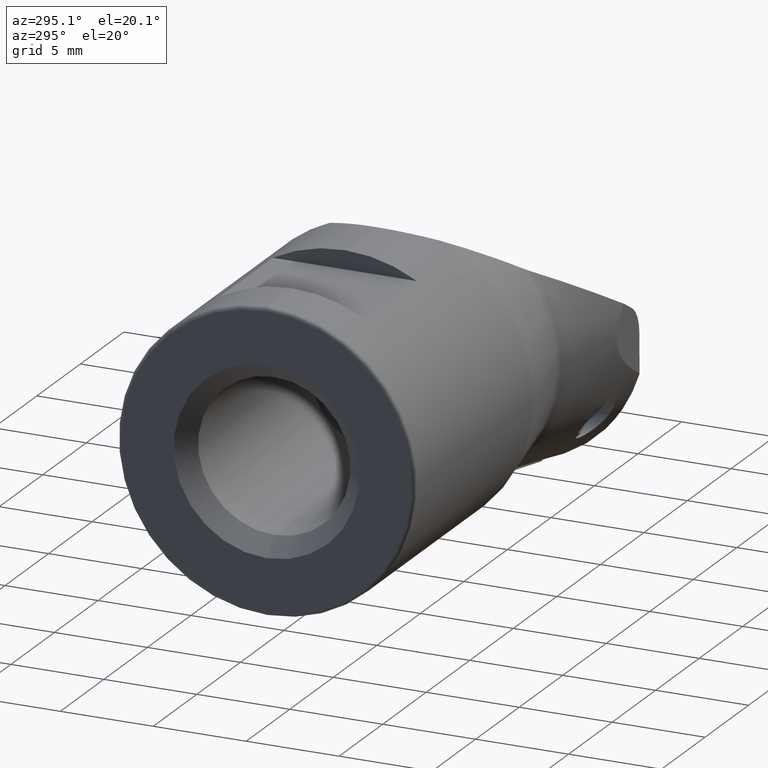
[diagram: clean part render]
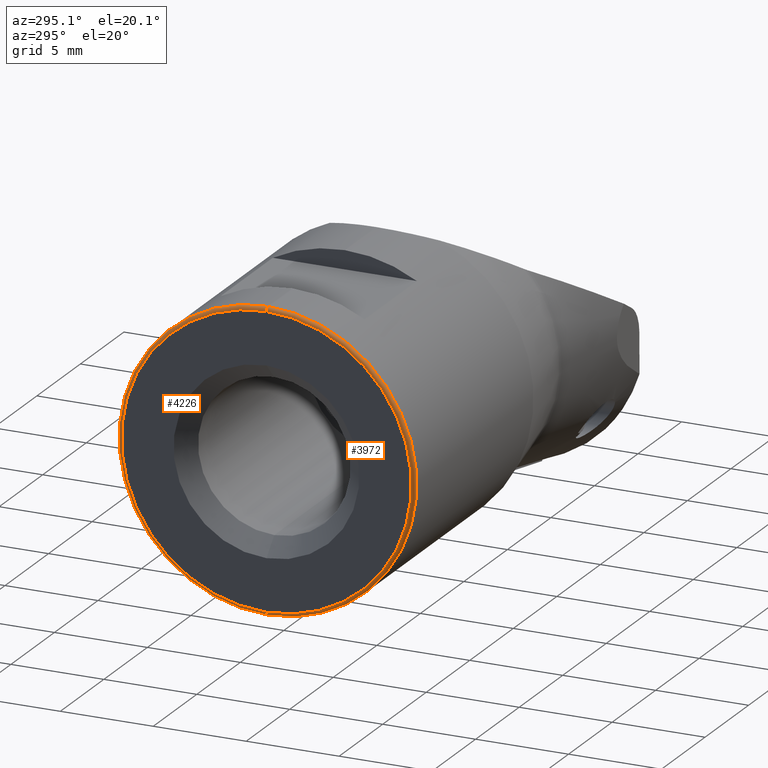
[diagram: same view with one multi-face feature highlighted, each face labeled with its STEP entity id]
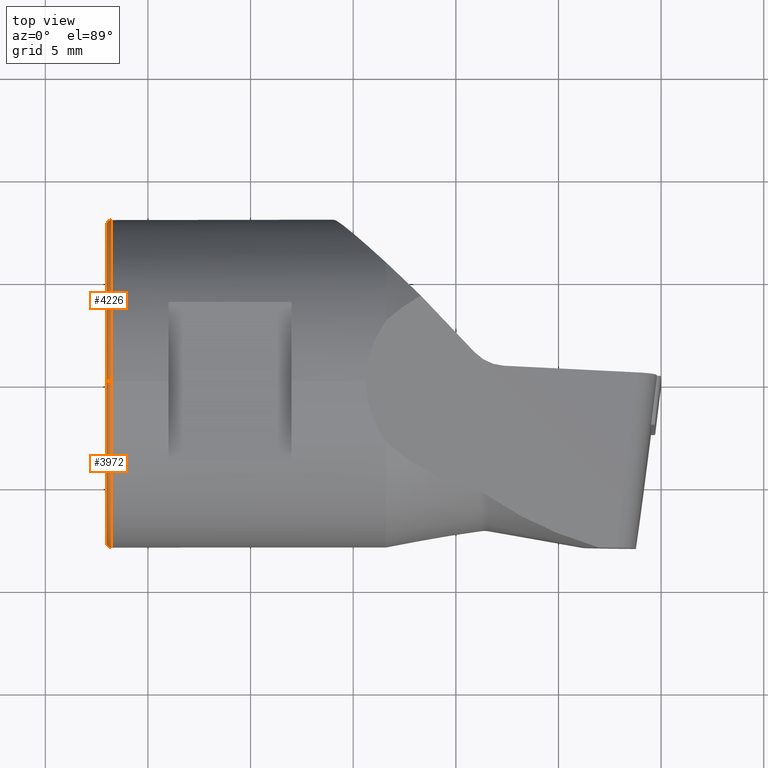
[diagram: same view with one multi-face feature highlighted, each face labeled with its STEP entity id]
A machine part, auxiliary view. The highlighted faces form ONE feature: a constant-radius fillet chain: 2 tangent blend faces with common blend radius 0.2 mm. The faces share edges in the B-rep.
A second angle (top view) of the same feature is appended — it is thin or edge-on in the first view.
Their STEP definitions:
[1] entity #3972 (Torus):
#35 = CARTESIAN_POINT ( 'NONE',  ( -26.80000000000000100, 0.0000000000000000000, 1.074999999999998600 ) ) ;
#44 = CARTESIAN_POINT ( 'NONE',  ( -26.80000000000000100, 9.797174393178825700E-016, 0.8749999999999990000 ) ) ;
#96 = CARTESIAN_POINT ( 'NONE',  ( -26.80000000000000100, 0.0000000000000000000, 8.875000000000000000 ) ) ;
#299 = AXIS2_PLACEMENT_3D ( 'NONE', #667, #1365, #4119 ) ;
#324 = CARTESIAN_POINT ( 'NONE',  ( -27.00000000000000000, 9.674709713264092100E-016, 16.67500000000000100 ) ) ;
#461 = TOROIDAL_SURFACE ( 'NONE', #1597, 7.800000000000000700, 0.2000000000000000100 ) ;
#475 = EDGE_CURVE ( 'NONE', #2062, #4185, #4625, .T. ) ;
#483 = DIRECTION ( 'NONE',  ( 0.0000000000000000000, 1.224646799147363800E-016, 1.000000000000000000 ) ) ;
#508 = AXIS2_PLACEMENT_3D ( 'NONE', #853, #3000, #483 ) ;
#525 = VERTEX_POINT ( 'NONE', #324 ) ;
#667 = CARTESIAN_POINT ( 'NONE',  ( -26.80000000000000100, 0.0000000000000000000, 8.875000000000000000 ) ) ;
#679 = ORIENTED_EDGE ( 'NONE', *, *, #4217, .F. ) ;
#685 = CIRCLE ( 'NONE', #299, 8.000000000000000000 ) ;
#767 = CARTESIAN_POINT ( 'NONE',  ( -27.00000000000000000, 0.0000000000000000000, 1.074999999999998600 ) ) ;
#780 = EDGE_CURVE ( 'NONE', #525, #1428, #1652, .T. ) ;
#853 = CARTESIAN_POINT ( 'NONE',  ( -26.80000000000000100, 9.552245033349356500E-016, 16.67499999999999700 ) ) ;
#1221 = AXIS2_PLACEMENT_3D ( 'NONE', #35, #2185, #1816 ) ;
#1223 = DIRECTION ( 'NONE',  ( 1.000000000000000000, 0.0000000000000000000, 0.0000000000000000000 ) ) ;
#1277 = FACE_OUTER_BOUND ( 'NONE', #2392, .T. ) ;
#1365 = DIRECTION ( 'NONE',  ( 1.000000000000000000, 0.0000000000000000000, 0.0000000000000000000 ) ) ;
#1428 = VERTEX_POINT ( 'NONE', #3156 ) ;
#1571 = ORIENTED_EDGE ( 'NONE', *, *, #3945, .F. ) ;
#1597 = AXIS2_PLACEMENT_3D ( 'NONE', #96, #1223, #2572 ) ;
#1652 = CIRCLE ( 'NONE', #508, 0.1999999999999987900 ) ;
#1816 = DIRECTION ( 'NONE',  ( 0.0000000000000000000, 0.0000000000000000000, -1.000000000000000000 ) ) ;
#1905 = DIRECTION ( 'NONE',  ( -1.000000000000000000, -0.0000000000000000000, -0.0000000000000000000 ) ) ;
#2062 = VERTEX_POINT ( 'NONE', #767 ) ;
#2185 = DIRECTION ( 'NONE',  ( 0.0000000000000000000, -1.000000000000000000, 0.0000000000000000000 ) ) ;
#2392 = EDGE_LOOP ( 'NONE', ( #2809, #679, #4627, #1571 ) ) ;
#2572 = DIRECTION ( 'NONE',  ( 0.0000000000000000000, 0.0000000000000000000, -1.000000000000000000 ) ) ;
#2809 = ORIENTED_EDGE ( 'NONE', *, *, #780, .F. ) ;
#3000 = DIRECTION ( 'NONE',  ( 0.0000000000000000000, 1.000000000000000000, -1.224646799147353200E-016 ) ) ;
#3010 = AXIS2_PLACEMENT_3D ( 'NONE', #4235, #1905, #3297 ) ;
#3156 = CARTESIAN_POINT ( 'NONE',  ( -26.80000000000000100, 0.0000000000000000000, 16.87500000000000000 ) ) ;
#3297 = DIRECTION ( 'NONE',  ( 0.0000000000000000000, 0.0000000000000000000, -1.000000000000000000 ) ) ;
#3824 = CIRCLE ( 'NONE', #3010, 7.800000000000000700 ) ;
#3945 = EDGE_CURVE ( 'NONE', #1428, #4185, #685, .T. ) ;
#3972 = ADVANCED_FACE ( 'NONE', ( #1277 ), #461, .T. ) ;
#4119 = DIRECTION ( 'NONE',  ( 0.0000000000000000000, 0.0000000000000000000, -1.000000000000000000 ) ) ;
#4185 = VERTEX_POINT ( 'NONE', #44 ) ;
#4217 = EDGE_CURVE ( 'NONE', #2062, #525, #3824, .T. ) ;
#4235 = CARTESIAN_POINT ( 'NONE',  ( -27.00000000000000000, 0.0000000000000000000, 8.875000000000000000 ) ) ;
#4625 = CIRCLE ( 'NONE', #1221, 0.1999999999999999800 ) ;
#4627 = ORIENTED_EDGE ( 'NONE', *, *, #475, .T. ) ;
[2] entity #4226 (Torus):
#35 = CARTESIAN_POINT ( 'NONE',  ( -26.80000000000000100, 0.0000000000000000000, 1.074999999999998600 ) ) ;
#41 = DIRECTION ( 'NONE',  ( 1.000000000000000000, 0.0000000000000000000, 0.0000000000000000000 ) ) ;
#44 = CARTESIAN_POINT ( 'NONE',  ( -26.80000000000000100, 9.797174393178825700E-016, 0.8749999999999990000 ) ) ;
#120 = EDGE_CURVE ( 'NONE', #4185, #1428, #652, .T. ) ;
#276 = ORIENTED_EDGE ( 'NONE', *, *, #1757, .F. ) ;
#294 = ORIENTED_EDGE ( 'NONE', *, *, #120, .F. ) ;
#324 = CARTESIAN_POINT ( 'NONE',  ( -27.00000000000000000, 9.674709713264092100E-016, 16.67500000000000100 ) ) ;
#396 = CARTESIAN_POINT ( 'NONE',  ( -26.80000000000000100, 0.0000000000000000000, 8.875000000000000000 ) ) ;
#447 = EDGE_LOOP ( 'NONE', ( #276, #2600, #294, #2755 ) ) ;
#475 = EDGE_CURVE ( 'NONE', #2062, #4185, #4625, .T. ) ;
#483 = DIRECTION ( 'NONE',  ( 0.0000000000000000000, 1.224646799147363800E-016, 1.000000000000000000 ) ) ;
#500 = FACE_OUTER_BOUND ( 'NONE', #447, .T. ) ;
#508 = AXIS2_PLACEMENT_3D ( 'NONE', #853, #3000, #483 ) ;
#525 = VERTEX_POINT ( 'NONE', #324 ) ;
#652 = CIRCLE ( 'NONE', #2601, 8.000000000000000000 ) ;
#767 = CARTESIAN_POINT ( 'NONE',  ( -27.00000000000000000, 0.0000000000000000000, 1.074999999999998600 ) ) ;
#780 = EDGE_CURVE ( 'NONE', #525, #1428, #1652, .T. ) ;
#853 = CARTESIAN_POINT ( 'NONE',  ( -26.80000000000000100, 9.552245033349356500E-016, 16.67499999999999700 ) ) ;
#1221 = AXIS2_PLACEMENT_3D ( 'NONE', #35, #2185, #1816 ) ;
#1410 = TOROIDAL_SURFACE ( 'NONE', #3920, 7.800000000000000700, 0.2000000000000000100 ) ;
#1428 = VERTEX_POINT ( 'NONE', #3156 ) ;
#1538 = AXIS2_PLACEMENT_3D ( 'NONE', #1750, #4485, #3042 ) ;
#1621 = CIRCLE ( 'NONE', #1538, 7.800000000000000700 ) ;
#1652 = CIRCLE ( 'NONE', #508, 0.1999999999999987900 ) ;
#1750 = CARTESIAN_POINT ( 'NONE',  ( -27.00000000000000000, 0.0000000000000000000, 8.875000000000000000 ) ) ;
#1757 = EDGE_CURVE ( 'NONE', #525, #2062, #1621, .T. ) ;
#1816 = DIRECTION ( 'NONE',  ( 0.0000000000000000000, 0.0000000000000000000, -1.000000000000000000 ) ) ;
#1836 = CARTESIAN_POINT ( 'NONE',  ( -26.80000000000000100, 0.0000000000000000000, 8.875000000000000000 ) ) ;
#2062 = VERTEX_POINT ( 'NONE', #767 ) ;
#2185 = DIRECTION ( 'NONE',  ( 0.0000000000000000000, -1.000000000000000000, 0.0000000000000000000 ) ) ;
#2192 = DIRECTION ( 'NONE',  ( 0.0000000000000000000, 0.0000000000000000000, -1.000000000000000000 ) ) ;
#2600 = ORIENTED_EDGE ( 'NONE', *, *, #780, .T. ) ;
#2601 = AXIS2_PLACEMENT_3D ( 'NONE', #396, #41, #2192 ) ;
#2755 = ORIENTED_EDGE ( 'NONE', *, *, #475, .F. ) ;
#3000 = DIRECTION ( 'NONE',  ( 0.0000000000000000000, 1.000000000000000000, -1.224646799147353200E-016 ) ) ;
#3042 = DIRECTION ( 'NONE',  ( 0.0000000000000000000, 0.0000000000000000000, -1.000000000000000000 ) ) ;
#3156 = CARTESIAN_POINT ( 'NONE',  ( -26.80000000000000100, 0.0000000000000000000, 16.87500000000000000 ) ) ;
#3888 = DIRECTION ( 'NONE',  ( 0.0000000000000000000, 0.0000000000000000000, -1.000000000000000000 ) ) ;
#3920 = AXIS2_PLACEMENT_3D ( 'NONE', #1836, #4078, #3888 ) ;
#4078 = DIRECTION ( 'NONE',  ( 1.000000000000000000, 0.0000000000000000000, 0.0000000000000000000 ) ) ;
#4185 = VERTEX_POINT ( 'NONE', #44 ) ;
#4226 = ADVANCED_FACE ( 'NONE', ( #500 ), #1410, .T. ) ;
#4485 = DIRECTION ( 'NONE',  ( -1.000000000000000000, -0.0000000000000000000, -0.0000000000000000000 ) ) ;
#4625 = CIRCLE ( 'NONE', #1221, 0.1999999999999999800 ) ;